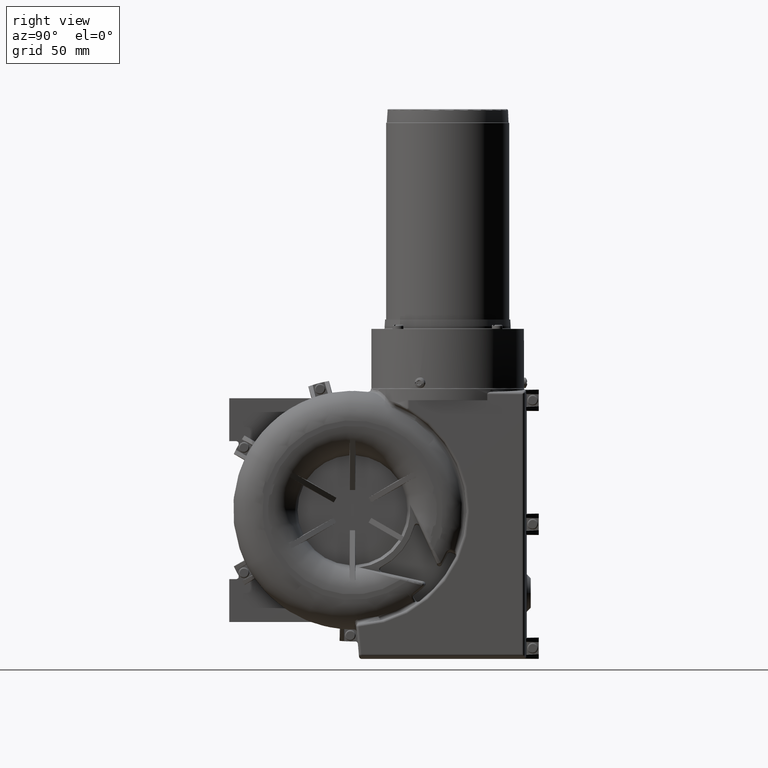
[diagram: clean part render]
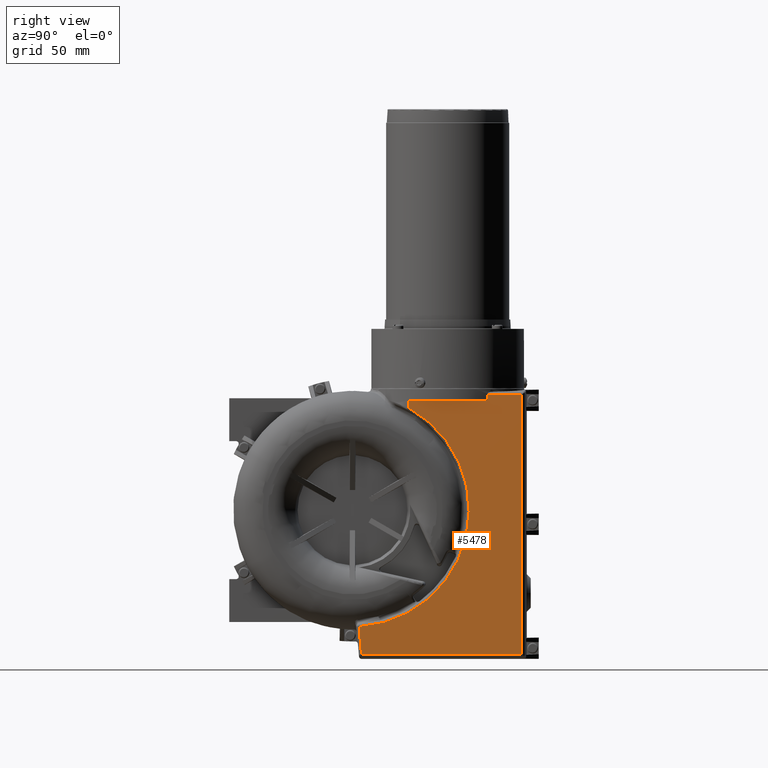
[diagram: same view with one face highlighted and labeled with its STEP entity id]
A machine part, right view. The second image highlights one B-rep face of the part: STEP entity #5478.
In plain terms, the highlighted planar face has unit normal (-1, 0, 0).
Its self-contained STEP definition (entity closure, byte-faithful):
#5478 = ADVANCED_FACE( '', ( #11950 ), #11951, .F. );
#11950 = FACE_OUTER_BOUND( '', #23397, .T. );
#11951 = PLANE( '', #23398 );
#23397 = EDGE_LOOP( '', ( #42044, #42045, #42046, #42047, #42048, #42049, #42050, #42051 ) );
#23398 = AXIS2_PLACEMENT_3D( '', #42052, #42053, #42054 );
#42044 = ORIENTED_EDGE( '', *, *, #55411, .F. );
#42045 = ORIENTED_EDGE( '', *, *, #56352, .F. );
#42046 = ORIENTED_EDGE( '', *, *, #56453, .F. );
#42047 = ORIENTED_EDGE( '', *, *, #55466, .F. );
#42048 = ORIENTED_EDGE( '', *, *, #50735, .F. );
#42049 = ORIENTED_EDGE( '', *, *, #53491, .F. );
#42050 = ORIENTED_EDGE( '', *, *, #56454, .F. );
#42051 = ORIENTED_EDGE( '', *, *, #50836, .F. );
#42052 = CARTESIAN_POINT( '', ( 49.0000000000072, 0.000000000000000, 0.000000000000000 ) );
#42053 = DIRECTION( '', ( -1.00000000000000, 0.000000000000000, 0.000000000000000 ) );
#42054 = DIRECTION( '', ( 0.000000000000000, 0.000000000000000, 1.00000000000000 ) );
#50735 = EDGE_CURVE( '', #60756, #60758, #60759, .T. );
#50836 = EDGE_CURVE( '', #60924, #60927, #60928, .T. );
#53491 = EDGE_CURVE( '', #62779, #60756, #65237, .T. );
#55411 = EDGE_CURVE( '', #67935, #60924, #67937, .T. );
#55466 = EDGE_CURVE( '', #60758, #68008, #68009, .T. );
#56352 = EDGE_CURVE( '', #69126, #67935, #69128, .T. );
#56453 = EDGE_CURVE( '', #68008, #69126, #69254, .T. );
#56454 = EDGE_CURVE( '', #60927, #62779, #69255, .T. );
#60756 = VERTEX_POINT( '', #76356 );
#60758 = VERTEX_POINT( '', #76372 );
#60759 = CIRCLE( '', #76373, 87.0710607812594 );
#60924 = VERTEX_POINT( '', #76775 );
#60927 = VERTEX_POINT( '', #76793 );
#60928 = LINE( '', #76794, #76795 );
#62779 = VERTEX_POINT( '', #79987 );
#65237 = LINE( '', #84719, #84720 );
#67935 = VERTEX_POINT( '', #89986 );
#67937 = LINE( '', #90004, #90005 );
#68008 = VERTEX_POINT( '', #90106 );
#68009 = LINE( '', #90107, #90108 );
#69126 = VERTEX_POINT( '', #92166 );
#69128 = LINE( '', #92168, #92169 );
#69254 = LINE( '', #92417, #92418 );
#69255 = LINE( '', #92419, #92420 );
#76356 = CARTESIAN_POINT( '', ( 48.9999999999955, 4.90204651269477, -86.9329600255280 ) );
#76372 = CARTESIAN_POINT( '', ( 49.0000000000000, 42.0404491752454, 76.2493949612556 ) );
#76373 = AXIS2_PLACEMENT_3D( '', #97095, #97096, #97097 );
#76775 = CARTESIAN_POINT( '', ( 49.0000000000014, 126.357504745293, 86.3575047453004 ) );
#76793 = CARTESIAN_POINT( '', ( 49.0000000000014, 126.357504745293, -107.357504745293 ) );
#76794 = CARTESIAN_POINT( '', ( 49.0000000000072, 126.357504745293, 86.3575047453004 ) );
#76795 = VECTOR( '', #97202, 1000.00000000000 );
#79987 = CARTESIAN_POINT( '', ( 48.9999999999967, 6.68896263335354, -107.357504745293 ) );
#84719 = CARTESIAN_POINT( '', ( 49.0000000000072, 6.68896263335354, -107.357504745293 ) );
#84720 = VECTOR( '', #100445, 1000.00000000000 );
#89986 = CARTESIAN_POINT( '', ( 48.9999999999983, 100.520279102293, 86.3575047453004 ) );
#90004 = CARTESIAN_POINT( '', ( 49.0000000000072, 100.520279102296, 86.3575047453004 ) );
#90005 = VECTOR( '', #102563, 1000.00000000000 );
#90106 = CARTESIAN_POINT( '', ( 49.0000000000014, 42.0404491752454, 82.0018909365302 ) );
#90107 = CARTESIAN_POINT( '', ( 49.0000000000072, 42.0404491752454, 76.2493949612556 ) );
#90108 = VECTOR( '', #102625, 1000.00000000000 );
#92166 = CARTESIAN_POINT( '', ( 49.0000000000012, 100.520279102292, 82.0018909365302 ) );
#92168 = CARTESIAN_POINT( '', ( 49.0000000000072, 100.520279102296, 82.0018909365302 ) );
#92169 = VECTOR( '', #103636, 1000.00000000000 );
#92417 = CARTESIAN_POINT( '', ( 49.0000000000072, 42.0404491752454, 82.0018909365302 ) );
#92418 = VECTOR( '', #103717, 1000.00000000000 );
#92419 = CARTESIAN_POINT( '', ( 49.0000000000072, 126.357504745293, -107.357504745293 ) );
#92420 = VECTOR( '', #103718, 1000.00000000000 );
#97095 = CARTESIAN_POINT( '', ( 49.0000000000072, -5.41994622793585E-007, 1.23355554937365E-007 ) );
#97096 = DIRECTION( '', ( 1.00000000000000, 0.000000000000000, 0.000000000000000 ) );
#97097 = DIRECTION( '', ( 0.000000000000000, 0.0562993836379709, -0.998413931894975 ) );
#97202 = DIRECTION( '', ( 0.000000000000000, 0.000000000000000, -1.00000000000000 ) );
#100445 = DIRECTION( '', ( 0.000000000000000, -0.0871557427476639, 0.996194698091745 ) );
#102563 = DIRECTION( '', ( 0.000000000000000, 1.00000000000000, 0.000000000000000 ) );
#102625 = DIRECTION( '', ( 0.000000000000000, 0.000000000000000, 1.00000000000000 ) );
#103636 = DIRECTION( '', ( 0.000000000000000, -3.10767660093900E-014, 1.00000000000000 ) );
#103717 = DIRECTION( '', ( 0.000000000000000, 1.00000000000000, 0.000000000000000 ) );
#103718 = DIRECTION( '', ( 0.000000000000000, -1.00000000000000, 0.000000000000000 ) );